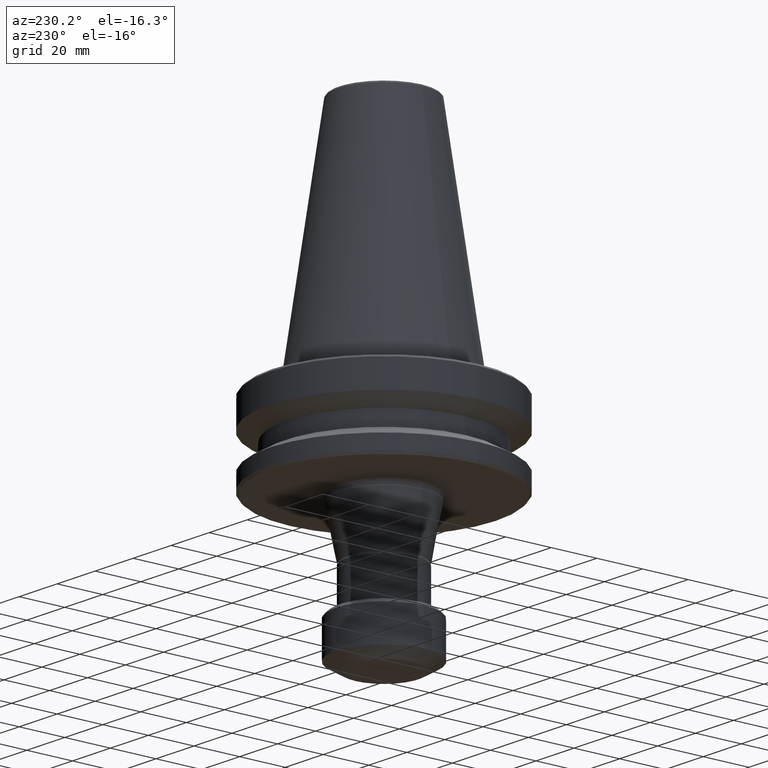
[diagram: clean part render]
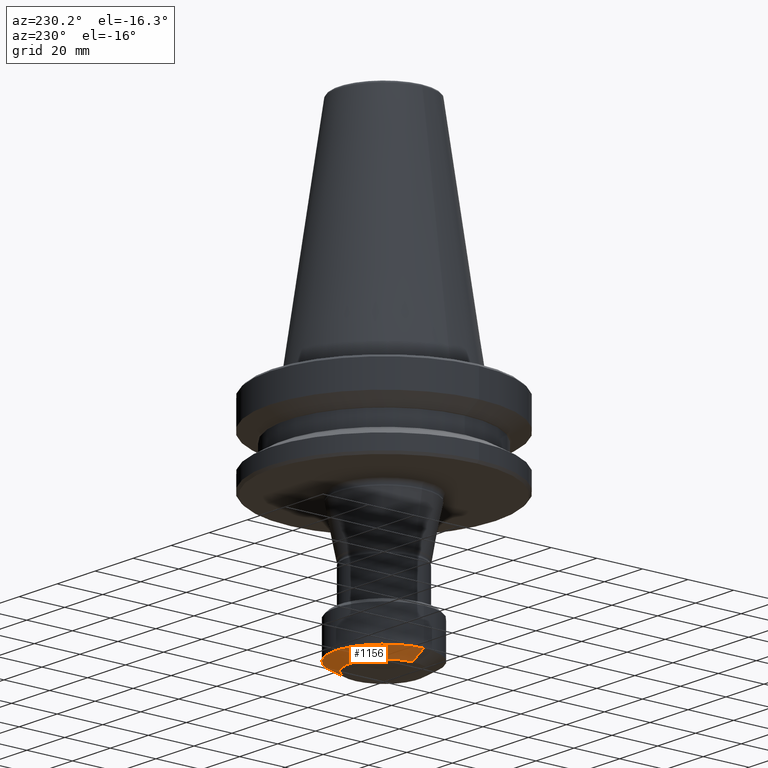
[diagram: same view with one face highlighted and labeled with its STEP entity id]
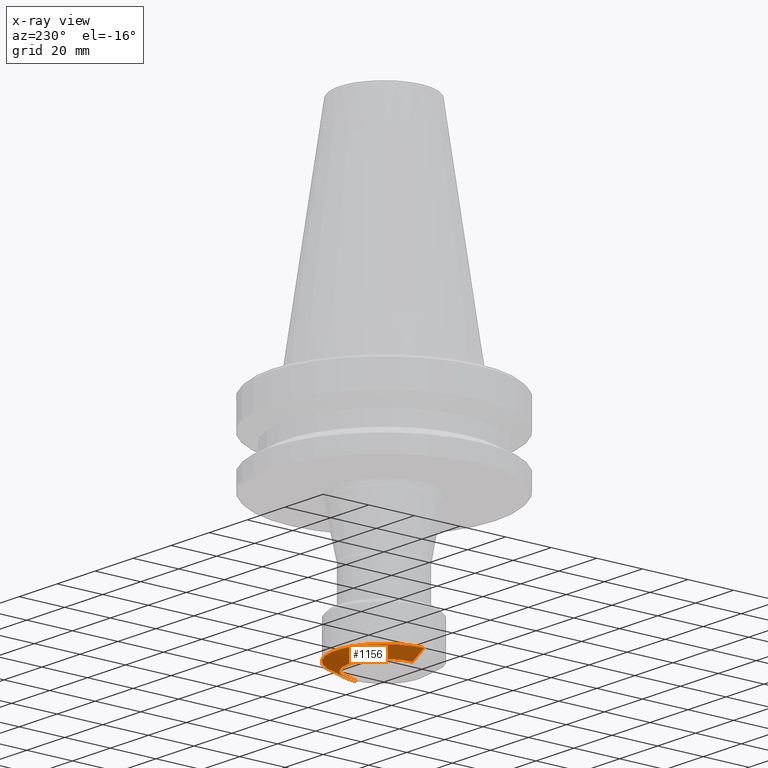
[diagram: x-ray of the same camera — body ghosted, the highlighted face saturated]
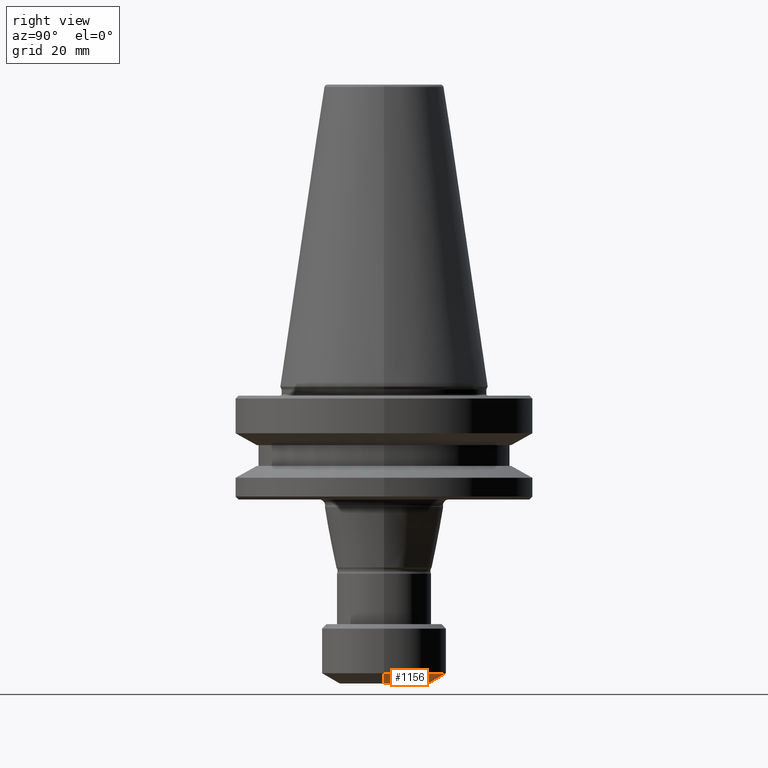
[diagram: same view with one face highlighted and labeled with its STEP entity id]
A machine part, auxiliary view. The second image highlights one B-rep face of the part: STEP entity #1156.
The next image is the same camera in x-ray: the body ghosted, the highlighted face saturated — about 0% of this face is hidden behind the body in this view.
A second angle (right view) of the same face is appended — the face is thin or edge-on in the first view.
In plain terms, the highlighted conical surface has half-angle 60 deg.
Its self-contained STEP definition (entity closure, byte-faithful):
#9 = VECTOR ( 'NONE', #992, 1000.000000000000000 ) ;
#38 = VERTEX_POINT ( 'NONE', #1280 ) ;
#47 = VERTEX_POINT ( 'NONE', #271 ) ;
#140 = ORIENTED_EDGE ( 'NONE', *, *, #1105, .F. ) ;
#143 = CARTESIAN_POINT ( 'NONE',  ( 15.00000000001633400, 0.0000000000000000000, -100.0077792500935800 ) ) ;
#193 = AXIS2_PLACEMENT_3D ( 'NONE', #325, #1070, #428 ) ;
#271 = CARTESIAN_POINT ( 'NONE',  ( -15.00000000001633400, 2.204364238466236900E-015, -100.0077792500935800 ) ) ;
#284 = LINE ( 'NONE', #924, #1378 ) ;
#301 = ORIENTED_EDGE ( 'NONE', *, *, #1372, .T. ) ;
#325 = CARTESIAN_POINT ( 'NONE',  ( 0.0000000000000000000, 0.0000000000000000000, -100.0077792500935800 ) ) ;
#416 = CIRCLE ( 'NONE', #1308, 21.00000000000001800 ) ;
#428 = DIRECTION ( 'NONE',  ( 1.000000000000000000, 0.0000000000000000000, 0.0000000000000000000 ) ) ;
#460 = DIRECTION ( 'NONE',  ( -0.0000000000000000000, -0.0000000000000000000, 1.000000000000000000 ) ) ;
#508 = EDGE_CURVE ( 'NONE', #1354, #38, #416, .T. ) ;
#550 = DIRECTION ( 'NONE',  ( -0.0000000000000000000, -0.0000000000000000000, 1.000000000000000000 ) ) ;
#684 = DIRECTION ( 'NONE',  ( 1.000000000000000000, 0.0000000000000000000, 0.0000000000000000000 ) ) ;
#722 = EDGE_LOOP ( 'NONE', ( #997, #301, #939, #140 ) ) ;
#891 = AXIS2_PLACEMENT_3D ( 'NONE', #1207, #460, #684 ) ;
#902 = EDGE_CURVE ( 'NONE', #1147, #47, #1234, .T. ) ;
#924 = CARTESIAN_POINT ( 'NONE',  ( -15.00000000001633400, 1.836970198723030100E-015, -100.0077792500935800 ) ) ;
#939 = ORIENTED_EDGE ( 'NONE', *, *, #508, .F. ) ;
#992 = DIRECTION ( 'NONE',  ( 0.8660254037844387100, 0.0000000000000000000, 0.4999999999999998900 ) ) ;
#997 = ORIENTED_EDGE ( 'NONE', *, *, #902, .T. ) ;
#1070 = DIRECTION ( 'NONE',  ( -0.0000000000000000000, -0.0000000000000000000, 1.000000000000000000 ) ) ;
#1077 = LINE ( 'NONE', #1309, #9 ) ;
#1105 = EDGE_CURVE ( 'NONE', #1147, #1354, #1077, .T. ) ;
#1139 = DIRECTION ( 'NONE',  ( -0.8660254037844387100, 1.060575238724906900E-016, 0.4999999999999998900 ) ) ;
#1147 = VERTEX_POINT ( 'NONE', #143 ) ;
#1156 = ADVANCED_FACE ( 'NONE', ( #1361 ), #1329, .T. ) ;
#1186 = CARTESIAN_POINT ( 'NONE',  ( 0.0000000000000000000, 0.0000000000000000000, -96.54367763496523500 ) ) ;
#1207 = CARTESIAN_POINT ( 'NONE',  ( 0.0000000000000000000, 0.0000000000000000000, -100.0077792500935800 ) ) ;
#1234 = CIRCLE ( 'NONE', #193, 15.00000000001633400 ) ;
#1280 = CARTESIAN_POINT ( 'NONE',  ( -21.00000000000001800, 2.571758278209444000E-015, -96.54367763496523500 ) ) ;
#1295 = DIRECTION ( 'NONE',  ( 1.000000000000000000, 0.0000000000000000000, 0.0000000000000000000 ) ) ;
#1308 = AXIS2_PLACEMENT_3D ( 'NONE', #1186, #550, #1295 ) ;
#1309 = CARTESIAN_POINT ( 'NONE',  ( 15.00000000001633400, 0.0000000000000000000, -100.0077792500935800 ) ) ;
#1329 = CONICAL_SURFACE ( 'NONE', #891, 15.00000000001633400, 1.047197551196597900 ) ;
#1354 = VERTEX_POINT ( 'NONE', #1355 ) ;
#1355 = CARTESIAN_POINT ( 'NONE',  ( 21.00000000000001800, 0.0000000000000000000, -96.54367763496523500 ) ) ;
#1361 = FACE_OUTER_BOUND ( 'NONE', #722, .T. ) ;
#1372 = EDGE_CURVE ( 'NONE', #47, #38, #284, .T. ) ;
#1378 = VECTOR ( 'NONE', #1139, 1000.000000000000000 ) ;